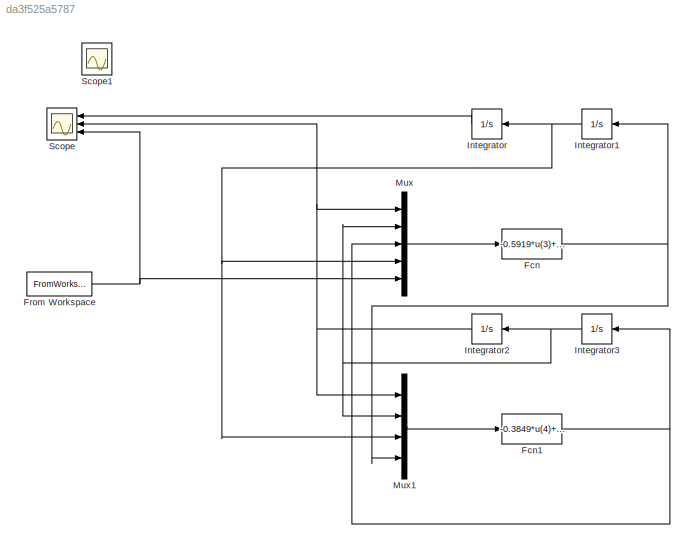
MODEL slx_da3f525a5787
KIND model
CONFIG AbsTol = auto
CONFIG FixedStep = auto
CONFIG MaxStep = auto
CONFIG MinStep = auto
CONFIG RelTol = 1e-3
CONFIG SampleTimeConstraint = Unconstrained
CONFIG Solver = VariableStepAuto
CONFIG SolverMode = Auto
CONFIG SolverName = VariableStepAuto
CONFIG StartTime = 0.0
CONFIG StopTime = 10.0
BLOCK [Fcn] Fcn
  Expr = -0.5919*u(3)+0.3735*(2*cos(u(1))*u(3)-sin(2*u(1))/cos(u(1))*u(2))+6.4125*u(2)-140.5816*u(4)+15.747*u(5)
BLOCK [Fcn] Fcn1
  Expr = -0.3849*u(4)+0.8639*cos(u(1))*u(4)-1.2506*(u(2)+u(3))-106.2762*sin(u(1))
BLOCK [FromWorkspace] From Workspace
  SampleTime = 0
  VariableName = v
  ZeroCross = on
BLOCK [Integrator] Integrator
  Ports = [1, 1]
BLOCK [Integrator] Integrator1
  Ports = [1, 1]
BLOCK [Integrator] Integrator2
  Ports = [1, 1]
BLOCK [Integrator] Integrator3
  Ports = [1, 1]
BLOCK [Mux] Mux
  DisplayOption = bar
  Inputs = 5
  Ports = [5, 1]
BLOCK [Mux] Mux1
  DisplayOption = bar
  Ports = [4, 1]
BLOCK [Scope] Scope
  NumInputPorts = 3
  Ports = [3]
  ScopeSpecificationString = Simulink.scopes.TimeScopeBlockCfg('CurrentConfiguration', extmgr.ConfigurationSet(extmgr.Configuration('Core','General UI',true),extmgr.Configuration('Core','Source UI',true),extmgr.Configuration('Sources','WiredSimulink',true),extmgr.Configuration('Visuals','Time Domain',true,'SerializedDisplays',{struct('MinYLimReal','-7.34384','MaxYLimReal','63.0382','YLabelReal','','MinYLimMag','0.00000','MaxY...<+1491ch>
BLOCK [Scope] Scope1
  IOType = viewer
  Ports = []
  ScopeSpecificationString = Simulink.scopes.TimeScopeBlockCfg('CurrentConfiguration', extmgr.ConfigurationSet(extmgr.Configuration('Core','General UI',true),extmgr.Configuration('Core','Source UI',true),extmgr.Configuration('Sources','WiredSimulink',true,'DataLoggingVariableName','ScopeData1'),extmgr.Configuration('Visuals','Time Domain',true),extmgr.Configuration('Tools','Plot Navigation',true),extmgr.Configuration('Tools',...<+58ch>
NET Fcn1:1 -> Integrator3:1, Mux:3
NET Fcn:1 -> Integrator1:1, Mux1:4
NET From Workspace:1 -> Mux:5, Scope:3
NET Integrator1:1 -> Integrator:1, Mux1:3, Mux:4
NET Integrator2:1 -> Mux1:1, Mux:1, Scope:2
NET Integrator3:1 -> Integrator2:1, Mux1:2, Mux:2
LINE Integrator:1 -> Scope:1
LINE Mux1:1 -> Fcn1:1
LINE Mux:1 -> Fcn:1
note: NET lines group one-source signal fan-out (src -> all destinations, sorted); 1:1 wires keep LINE
